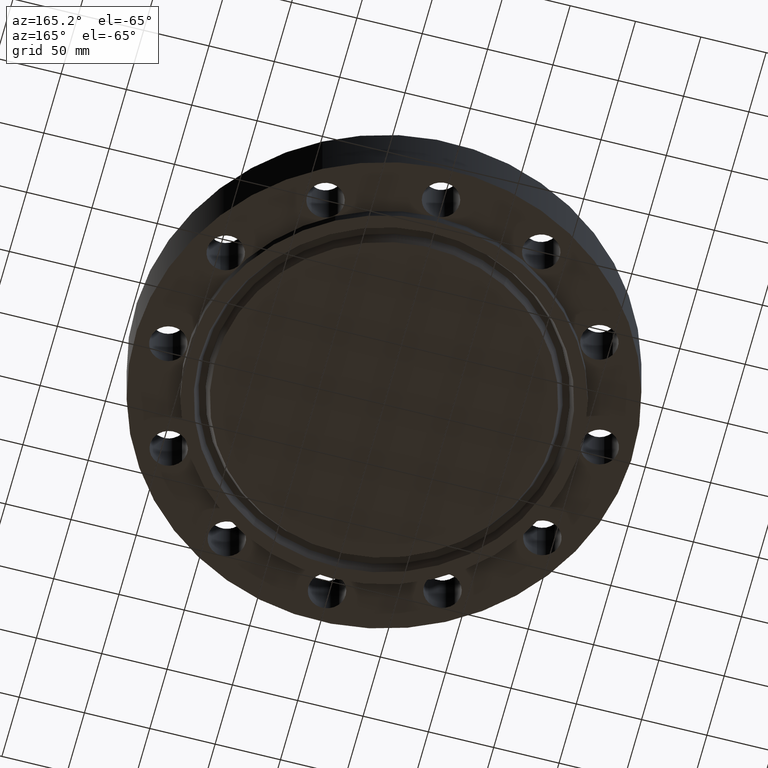
[diagram: clean part render]
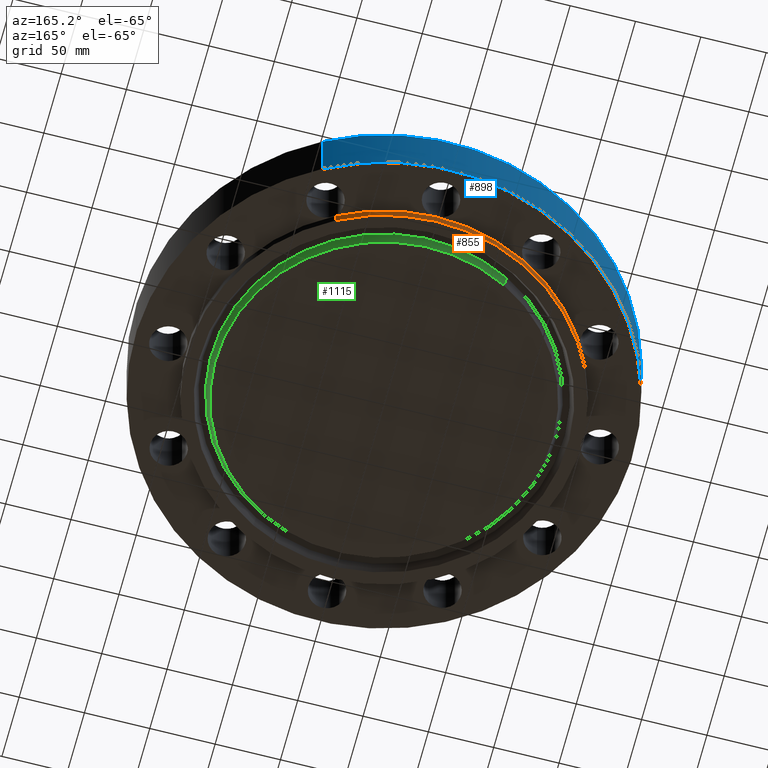
[diagram: same view with three faces highlighted in distinct colors, each labeled with its STEP entity id]
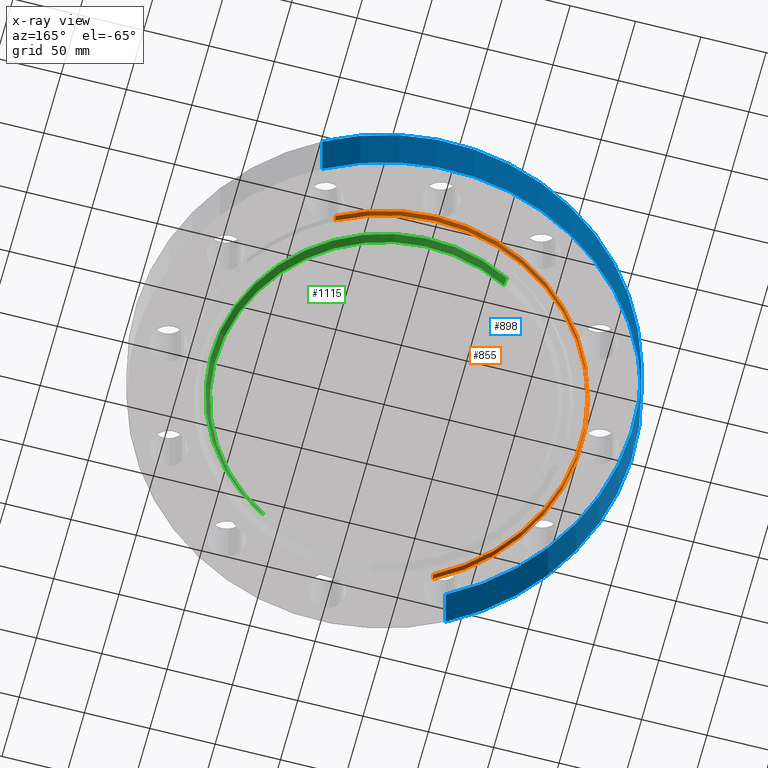
[diagram: x-ray of the same camera — body ghosted, the three highlighted faces saturated]
A machine part, auxiliary view with three faces highlighted in distinct colors.
The next image is the same camera in x-ray (body ghosted, the three faces saturated) — at least one of them is partly hidden behind the body in this view.
Their STEP definitions:

[orange] entity #855 — the highlighted cylindrical surface (partial cylindrical patch) has radius 150.812 mm, axis along (0, 0, -1).
#70=AXIS2_PLACEMENT_3D('Circle Axis2P3D',#68,#69,$) ;
#775=AXIS2_PLACEMENT_3D('Circle Axis2P3D',#773,#774,$) ;
#830=AXIS2_PLACEMENT_3D('Cylinder Axis2P3D',#827,#828,#829) ;
#63=CARTESIAN_POINT('Vertex',(2.84658913547,5.21064646124,-0.312500000001)) ;
#65=CARTESIAN_POINT('Vertex',(-2.84658913547,-5.21064646124,-0.312500000001)) ;
#68=CARTESIAN_POINT('Axis2P3D Location',(0.,0.,-0.312500000001)) ;
#768=CARTESIAN_POINT('Vertex',(2.84658913547,5.21064646124,5.59482469102E-016)) ;
#770=CARTESIAN_POINT('Vertex',(-2.84658913547,-5.21064646124,5.59482469102E-016)) ;
#773=CARTESIAN_POINT('Axis2P3D Location',(0.,0.,0.)) ;
#827=CARTESIAN_POINT('Axis2P3D Location',(0.,0.,0.783750000003)) ;
#832=CARTESIAN_POINT('Line Origine',(2.84658913547,5.21064646124,-0.156250000001)) ;
#837=CARTESIAN_POINT('Line Origine',(-2.84658913547,-5.21064646124,-0.156250000001)) ;
#69=DIRECTION('Axis2P3D Direction',(0.,0.,-0.0393700787402)) ;
#774=DIRECTION('Axis2P3D Direction',(0.,0.,-0.0393700787402)) ;
#828=DIRECTION('Axis2P3D Direction',(0.,0.,-0.0393700787402)) ;
#829=DIRECTION('Axis2P3D XDirection',(-0.0188750212049,-0.0345504945626,0.)) ;
#833=DIRECTION('Vector Direction',(0.,0.,-0.0393700787402)) ;
#838=DIRECTION('Vector Direction',(0.,0.,-0.0393700787402)) ;
#834=VECTOR('Line Direction',#833,0.0393700787402) ;
#839=VECTOR('Line Direction',#838,0.0393700787402) ;
#850=ORIENTED_EDGE('',*,*,#72,.F.) ;
#851=ORIENTED_EDGE('',*,*,#841,.T.) ;
#852=ORIENTED_EDGE('',*,*,#777,.T.) ;
#853=ORIENTED_EDGE('',*,*,#836,.F.) ;
#855=ADVANCED_FACE('PartBody',(#854),#831,.T.) ;
#71=CIRCLE('generated circle',#70,5.93750000002) ;
#776=CIRCLE('generated circle',#775,5.93750000002) ;
#831=CYLINDRICAL_SURFACE('generated cylinder',#830,5.93750000002) ;
#72=EDGE_CURVE('',#66,#64,#71,.T.) ;
#777=EDGE_CURVE('',#771,#769,#776,.T.) ;
#836=EDGE_CURVE('',#64,#769,#835,.F.) ;
#841=EDGE_CURVE('',#66,#771,#840,.F.) ;
#849=EDGE_LOOP('',(#850,#851,#852,#853)) ;
#854=FACE_OUTER_BOUND('',#849,.T.) ;
#835=LINE('Line',#832,#834) ;
#840=LINE('Line',#837,#839) ;
#64=VERTEX_POINT('',#63) ;
#66=VERTEX_POINT('',#65) ;
#769=VERTEX_POINT('',#768) ;
#771=VERTEX_POINT('',#770) ;

[blue] entity #898 — the highlighted cylindrical surface (partial cylindrical patch) has radius 190.5 mm, axis along (0, 0, -1).
#730=AXIS2_PLACEMENT_3D('Circle Axis2P3D',#728,#729,$) ;
#859=AXIS2_PLACEMENT_3D('Cylinder Axis2P3D',#856,#857,#858) ;
#889=AXIS2_PLACEMENT_3D('Circle Axis2P3D',#887,#888,$) ;
#728=CARTESIAN_POINT('Axis2P3D Location',(0.,0.,0.)) ;
#732=CARTESIAN_POINT('Vertex',(-3.59569153955,-6.5818692142,8.39223703654E-016)) ;
#734=CARTESIAN_POINT('Vertex',(3.59569153955,6.5818692142,8.39223703654E-016)) ;
#856=CARTESIAN_POINT('Axis2P3D Location',(0.,0.,0.783750000003)) ;
#861=CARTESIAN_POINT('Line Origine',(3.59569153955,6.5818692142,0.940000000004)) ;
#865=CARTESIAN_POINT('Vertex',(3.59569153955,6.5818692142,1.88000000001)) ;
#872=CARTESIAN_POINT('Vertex',(-3.59569153955,-6.5818692142,1.88000000001)) ;
#875=CARTESIAN_POINT('Line Origine',(-3.59569153955,-6.5818692142,0.940000000004)) ;
#887=CARTESIAN_POINT('Axis2P3D Location',(0.,0.,1.88000000001)) ;
#729=DIRECTION('Axis2P3D Direction',(0.,0.,-0.0393700787402)) ;
#857=DIRECTION('Axis2P3D Direction',(0.,0.,-0.0393700787402)) ;
#858=DIRECTION('Axis2P3D XDirection',(-0.0188750212049,-0.0345504945626,0.)) ;
#862=DIRECTION('Vector Direction',(0.,0.,-0.0393700787402)) ;
#876=DIRECTION('Vector Direction',(0.,0.,-0.0393700787402)) ;
#888=DIRECTION('Axis2P3D Direction',(0.,0.,-0.0393700787402)) ;
#863=VECTOR('Line Direction',#862,0.0393700787402) ;
#877=VECTOR('Line Direction',#876,0.0393700787402) ;
#893=ORIENTED_EDGE('',*,*,#736,.F.) ;
#894=ORIENTED_EDGE('',*,*,#879,.T.) ;
#895=ORIENTED_EDGE('',*,*,#891,.T.) ;
#896=ORIENTED_EDGE('',*,*,#867,.F.) ;
#898=ADVANCED_FACE('PartBody',(#897),#860,.T.) ;
#731=CIRCLE('generated circle',#730,7.50000000003) ;
#890=CIRCLE('generated circle',#889,7.50000000003) ;
#860=CYLINDRICAL_SURFACE('generated cylinder',#859,7.50000000003) ;
#736=EDGE_CURVE('',#733,#735,#731,.T.) ;
#867=EDGE_CURVE('',#735,#866,#864,.F.) ;
#879=EDGE_CURVE('',#733,#873,#878,.F.) ;
#891=EDGE_CURVE('',#873,#866,#890,.T.) ;
#892=EDGE_LOOP('',(#893,#894,#895,#896)) ;
#897=FACE_OUTER_BOUND('',#892,.T.) ;
#864=LINE('Line',#861,#863) ;
#878=LINE('Line',#875,#877) ;
#733=VERTEX_POINT('',#732) ;
#735=VERTEX_POINT('',#734) ;
#866=VERTEX_POINT('',#865) ;
#873=VERTEX_POINT('',#872) ;

[green] entity #1115 — the highlighted conical surface has half-angle 23 deg.
#42=AXIS2_PLACEMENT_3D('Circle Axis2P3D',#40,#41,$) ;
#1065=AXIS2_PLACEMENT_3D('Circle Axis2P3D',#1063,#1064,$) ;
#1097=AXIS2_PLACEMENT_3D('Cone Axis2P3D',#1094,#1095,#1096) ;
#40=CARTESIAN_POINT('Axis2P3D Location',(1.67844740731E-015,-6.99353086378E-016,-0.312500000001)) ;
#44=CARTESIAN_POINT('Vertex',(-2.4345708276,4.45645200755,-0.312500000001)) ;
#46=CARTESIAN_POINT('Vertex',(2.4345708276,-4.45645200755,-0.312500000001)) ;
#1060=CARTESIAN_POINT('Vertex',(2.49428500255,-4.56575807162,-0.0190701156784)) ;
#1063=CARTESIAN_POINT('Axis2P3D Location',(0.,0.,-0.0190701156784)) ;
#1067=CARTESIAN_POINT('Vertex',(-2.49428500255,4.56575807162,-0.0190701156784)) ;
#1094=CARTESIAN_POINT('Axis2P3D Location',(0.,0.,-0.372500000001)) ;
#1099=CARTESIAN_POINT('Line Origine',(-2.46442791507,4.51110503958,-0.16578505784)) ;
#1104=CARTESIAN_POINT('Line Origine',(2.46442791507,-4.51110503958,-0.16578505784)) ;
#41=DIRECTION('Axis2P3D Direction',(0.,0.,-0.0393700787402)) ;
#1064=DIRECTION('Axis2P3D Direction',(0.,0.,0.0393700787402)) ;
#1095=DIRECTION('Axis2P3D Direction',(0.,0.,0.0393700787402)) ;
#1096=DIRECTION('Axis2P3D XDirection',(-0.0188750212049,0.0345504945626,0.)) ;
#1100=DIRECTION('Vector Direction',(-0.00737505833565,0.0134999537303,0.0362403485611)) ;
#1105=DIRECTION('Vector Direction',(0.00737505833565,-0.0134999537303,0.0362403485611)) ;
#1101=VECTOR('Line Direction',#1100,0.0393700787402) ;
#1106=VECTOR('Line Direction',#1105,0.0393700787402) ;
#1110=ORIENTED_EDGE('',*,*,#1103,.F.) ;
#1111=ORIENTED_EDGE('',*,*,#1069,.F.) ;
#1112=ORIENTED_EDGE('',*,*,#1108,.T.) ;
#1113=ORIENTED_EDGE('',*,*,#48,.F.) ;
#1115=ADVANCED_FACE('PartBody',(#1114),#1098,.T.) ;
#43=CIRCLE('generated circle',#42,5.07810000002) ;
#1066=CIRCLE('generated circle',#1065,5.20265359624) ;
#1098=CONICAL_SURFACE('Cone',#1097,5.05263151105,0.401425727959) ;
#48=EDGE_CURVE('',#45,#47,#43,.T.) ;
#1069=EDGE_CURVE('',#1061,#1068,#1066,.T.) ;
#1103=EDGE_CURVE('',#1068,#45,#1102,.F.) ;
#1108=EDGE_CURVE('',#1061,#47,#1107,.F.) ;
#1109=EDGE_LOOP('',(#1110,#1111,#1112,#1113)) ;
#1114=FACE_OUTER_BOUND('',#1109,.T.) ;
#1102=LINE('Line',#1099,#1101) ;
#1107=LINE('Line',#1104,#1106) ;
#45=VERTEX_POINT('',#44) ;
#47=VERTEX_POINT('',#46) ;
#1061=VERTEX_POINT('',#1060) ;
#1068=VERTEX_POINT('',#1067) ;